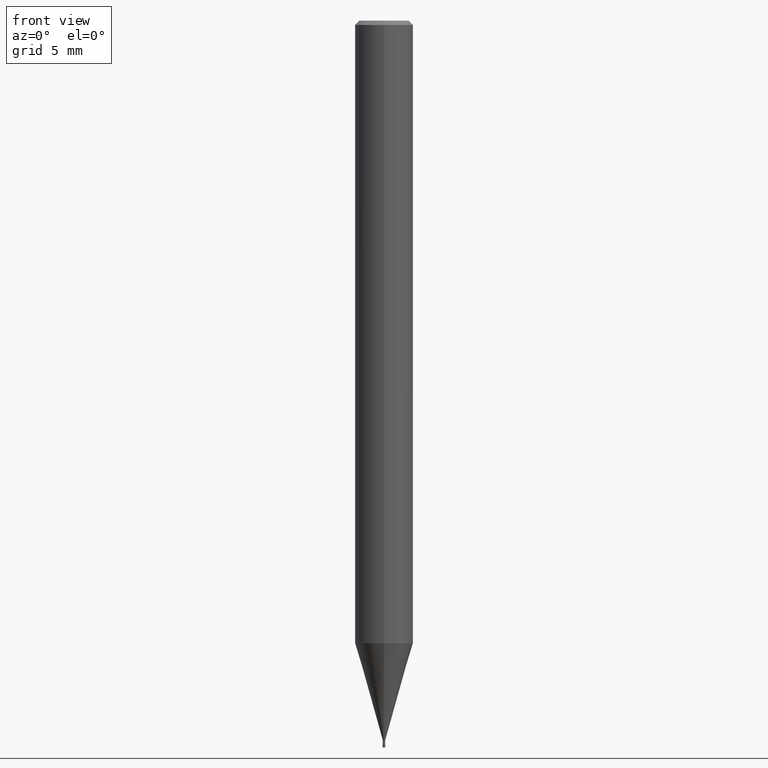
[diagram: clean part render]
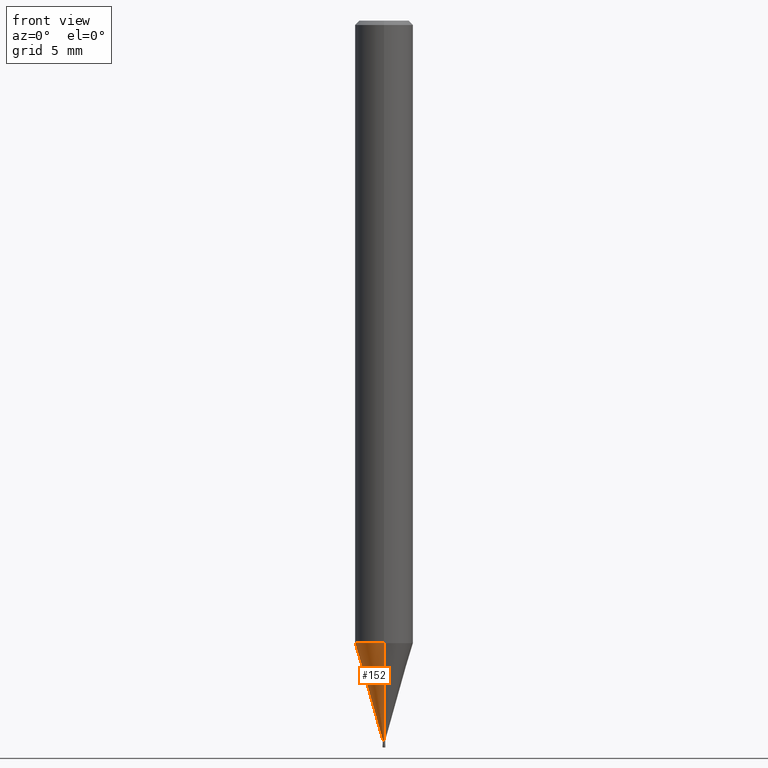
[diagram: same view with one face highlighted and labeled with its STEP entity id]
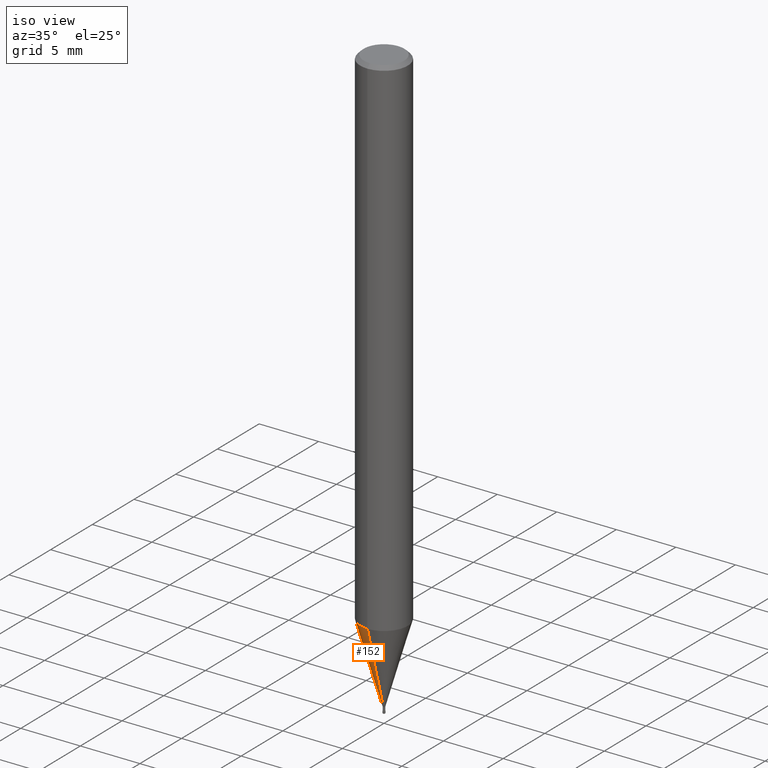
[diagram: same view with one face highlighted and labeled with its STEP entity id]
A machine part, front view. The second image highlights one B-rep face of the part: STEP entity #152.
A second angle (iso view) of the same face is appended — the face is thin or edge-on in the first view.
In plain terms, the highlighted conical surface has half-angle 16.001 deg.
Its self-contained STEP definition (entity closure, byte-faithful):
#124=VERTEX_POINT('',#281);
#142=EDGE_CURVE('',#124,#184,#302,.T.);
#152=ADVANCED_FACE('',(#314),#315,.T.);
#176=VERTEX_POINT('',#340);
#180=EDGE_CURVE('',#124,#176,#345,.T.);
#184=VERTEX_POINT('',#350);
#194=VERTEX_POINT('',#361);
#222=EDGE_CURVE('',#176,#194,#392,.T.);
#228=EDGE_CURVE('',#194,#184,#398,.T.);
#281=CARTESIAN_POINT('',(1.04030309757211E-017,-0.08495,-49.5));
#302=CIRCLE('',#481,0.08495);
#314=FACE_OUTER_BOUND('',#494,.T.);
#315=CONICAL_SURFACE('',#495,1.04245,0.279268497676986);
#340=CARTESIAN_POINT('',(2.44915147732706E-016,-1.99995,-42.822));
#345=LINE('',#530,#531);
#350=CARTESIAN_POINT('',(0.0,0.08495,-49.5));
#361=CARTESIAN_POINT('',(0.0,1.99995,-42.822));
#392=CIRCLE('',#586,1.99995);
#398=LINE('',#596,#597);
#481=AXIS2_PLACEMENT_3D('',#681,#682,#683);
#494=EDGE_LOOP('',(#696,#697,#698,#699));
#495=AXIS2_PLACEMENT_3D('',#700,#701,#702);
#530=CARTESIAN_POINT('',(1.27659089354214E-016,-1.04245,-46.161));
#531=VECTOR('',#735,1.0);
#586=AXIS2_PLACEMENT_3D('',#791,#792,#793);
#596=CARTESIAN_POINT('',(-1.27659089354214E-016,1.04245,-46.161));
#597=VECTOR('',#798,1.0);
#681=CARTESIAN_POINT('',(0.0,0.0,-49.5));
#682=DIRECTION('',(0.0,0.0,-1.0));
#683=DIRECTION('',(0.0,1.0,0.0));
#696=ORIENTED_EDGE('',*,*,#228,.T.);
#697=ORIENTED_EDGE('',*,*,#142,.F.);
#698=ORIENTED_EDGE('',*,*,#180,.T.);
#699=ORIENTED_EDGE('',*,*,#222,.T.);
#700=CARTESIAN_POINT('',(0.0,0.0,-46.161));
#701=DIRECTION('',(-0.0,-0.0,1.0));
#702=DIRECTION('',(0.0,1.0,0.0));
#735=DIRECTION('',(3.37565876916665E-017,-0.275652560402792,0.961257335963365));
#791=CARTESIAN_POINT('',(0.0,0.0,-42.822));
#792=DIRECTION('',(0.0,0.0,-1.0));
#793=DIRECTION('',(0.0,1.0,0.0));
#798=DIRECTION('',(3.37565876916665E-017,-0.275652560402792,-0.961257335963365));